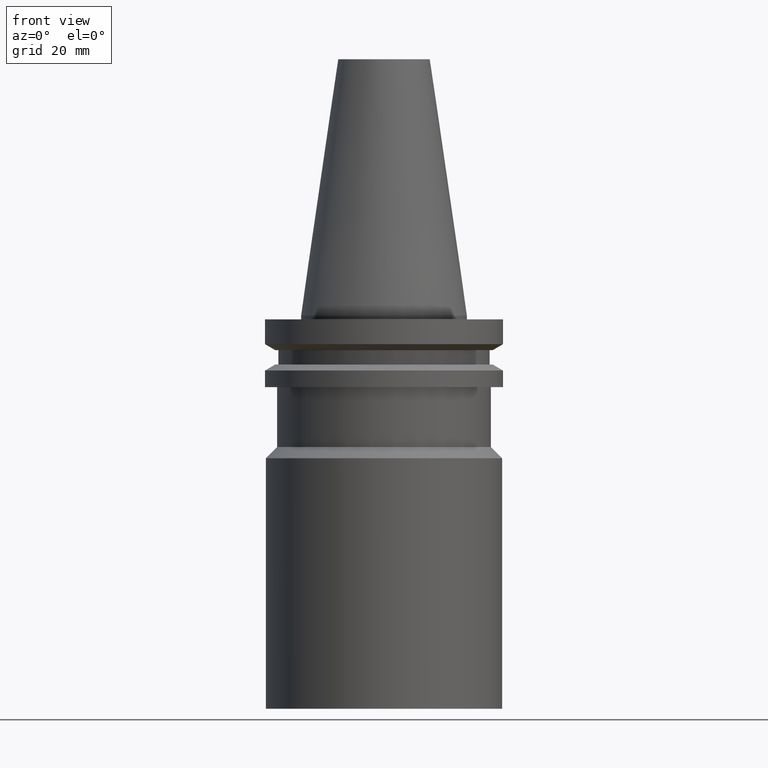
[diagram: clean part render]
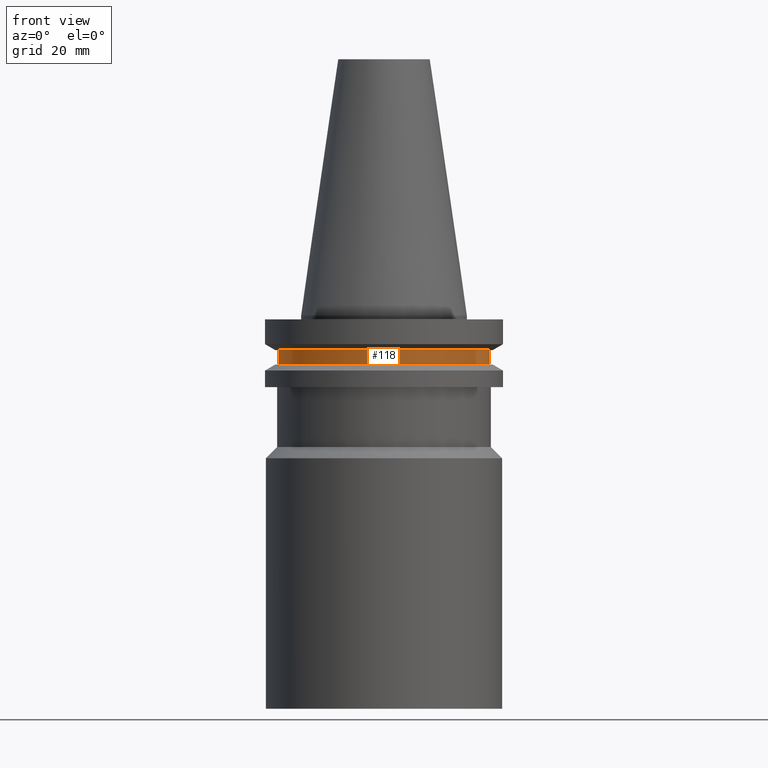
[diagram: same view with one face highlighted and labeled with its STEP entity id]
A machine part, front view. The second image highlights one B-rep face of the part: STEP entity #118.
In plain terms, the highlighted cylindrical surface (bore or boss wall) has radius 28.18 mm, axis along (0, -0, -1).
Its self-contained STEP definition (entity closure, byte-faithful):
#70=EDGE_CURVE('Unnamed[1]',#174,#174,#175,.T.);
#118=ADVANCED_FACE('Unnamed[1]',(#248,#249),#250,.T.);
#122=EDGE_CURVE('Unnamed[1]',#255,#255,#256,.T.);
#174=VERTEX_POINT('',#313);
#175=CIRCLE('',#314,28.18);
#248=FACE_BOUND('',#404,.T.);
#249=FACE_BOUND('',#405,.T.);
#250=CYLINDRICAL_SURFACE('',#406,28.18);
#255=VERTEX_POINT('',#413);
#256=CIRCLE('',#414,28.18);
#313=CARTESIAN_POINT('',(5.63337527607784E-016,28.18,-9.20000000000002));
#314=AXIS2_PLACEMENT_3D('',#465,#466,#467);
#404=EDGE_LOOP('',(#547));
#405=EDGE_LOOP('',(#548));
#406=AXIS2_PLACEMENT_3D('',#549,#550,#551);
#413=CARTESIAN_POINT('',(7.98469713044073E-016,28.18,-13.04));
#414=AXIS2_PLACEMENT_3D('',#555,#556,#557);
#465=CARTESIAN_POINT('',(5.63337527607784E-016,-1.80846726612316E-014,-9.20000000000003));
#466=DIRECTION('',(6.12323399573676E-017,-1.2242184292081E-016,-1.0));
#467=DIRECTION('',(2.6690231731669E-033,1.0,-1.2242184292081E-016));
#547=ORIENTED_EDGE('',*,*,#122,.F.);
#548=ORIENTED_EDGE('',*,*,#70,.T.);
#549=CARTESIAN_POINT('',(6.80903620325929E-016,-1.83197225996395E-014,-11.12));
#550=DIRECTION('',(6.12323399573677E-017,-1.2242184292081E-016,-1.0));
#551=DIRECTION('',(2.6690231731669E-033,1.0,-1.2242184292081E-016));
#555=CARTESIAN_POINT('',(7.98469713044074E-016,-1.85547725380474E-014,-13.04));
#556=DIRECTION('',(6.12323399573677E-017,-1.2242184292081E-016,-1.0));
#557=DIRECTION('',(2.6690231731669E-033,1.0,-1.2242184292081E-016));